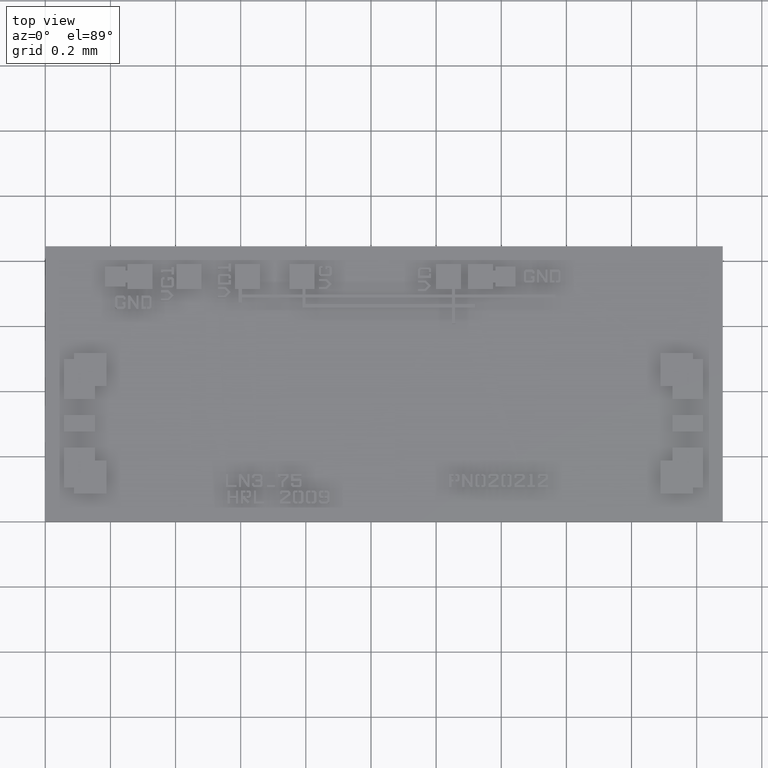
[diagram: clean part render]
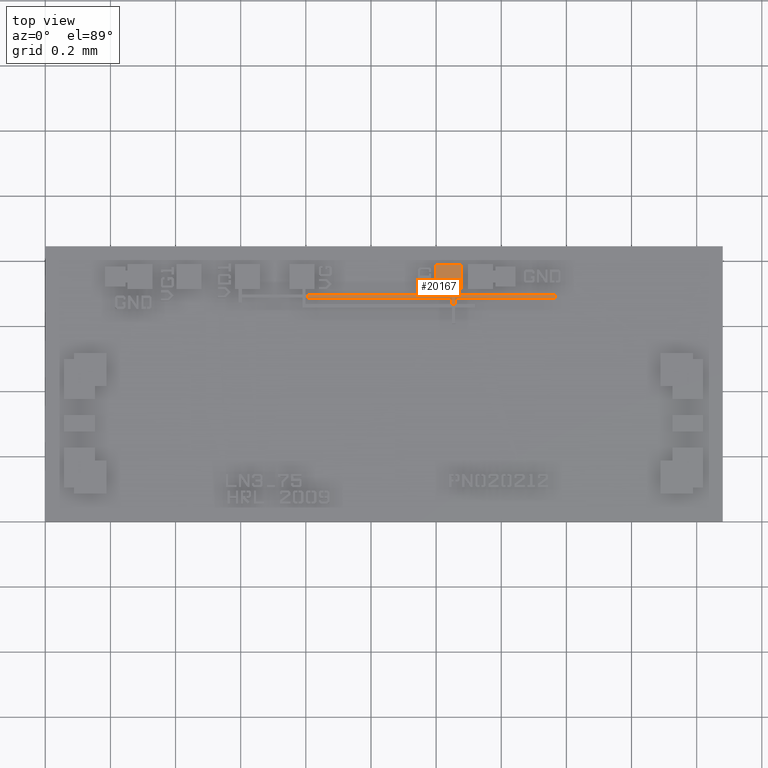
[diagram: same view with one face highlighted and labeled with its STEP entity id]
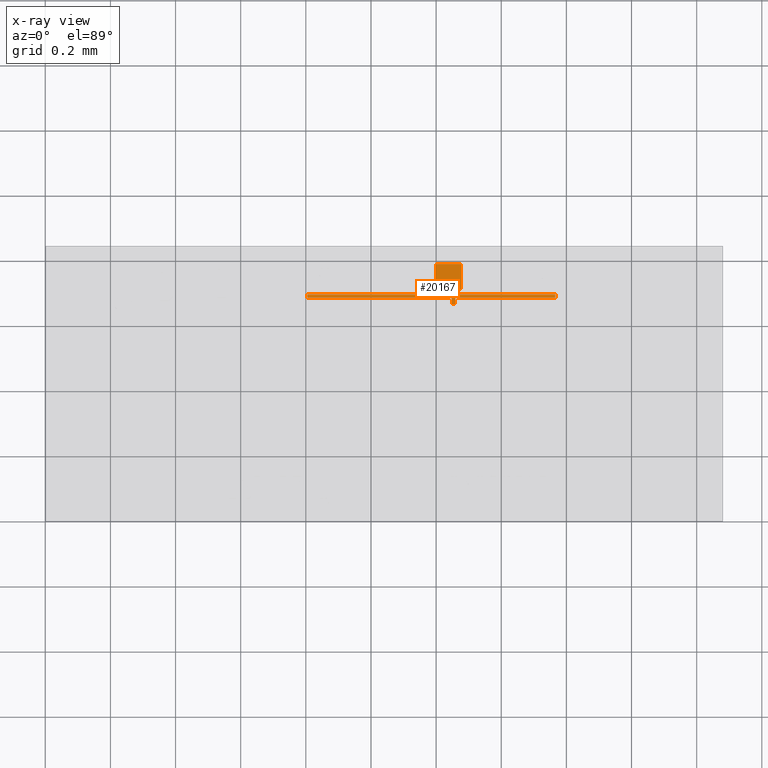
[diagram: x-ray of the same camera — body ghosted, the highlighted face saturated]
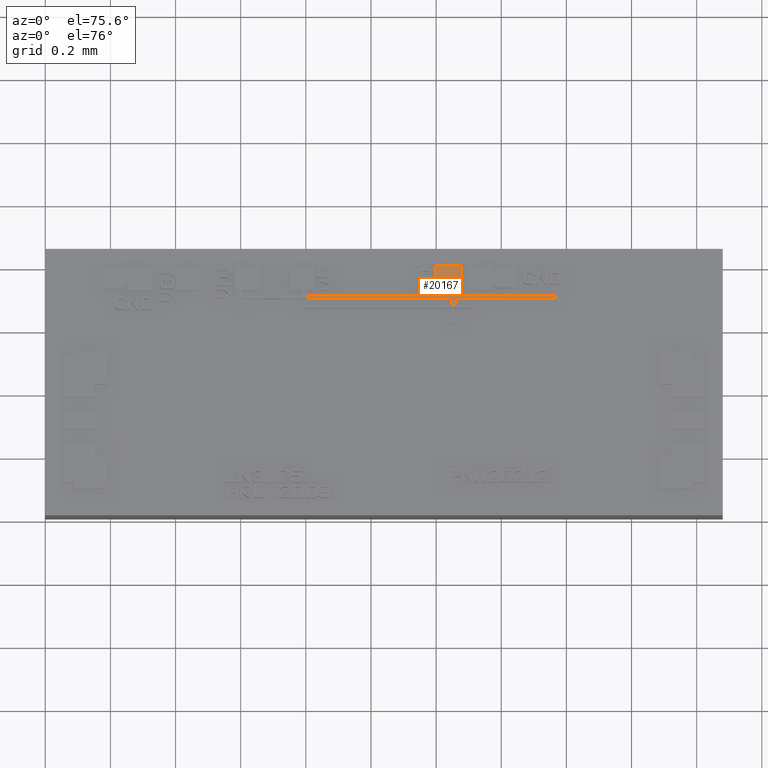
[diagram: same view with one face highlighted and labeled with its STEP entity id]
A machine part, top view. The second image highlights one B-rep face of the part: STEP entity #20167.
The next image is the same camera in x-ray: the body ghosted, the highlighted face saturated — about 0% of this face is hidden behind the body in this view.
A second angle (auxiliary view) of the same face is appended — the face is thin or edge-on in the first view.
In plain terms, the highlighted planar face has unit normal (0, 0, 1).
Its self-contained STEP definition (entity closure, byte-faithful):
#19637=CARTESIAN_POINT('',(0.031673228346457,0.027027559055118,0.002047244094488));
#19638=VERTEX_POINT('',#19637);
#19639=CARTESIAN_POINT('',(0.031673228346457,0.027421259842520,0.002047244094488));
#19640=VERTEX_POINT('',#19639);
#19641=CARTESIAN_POINT('',(0.031673228346457,0.027027559055118,0.002047244094488));
#19642=DIRECTION('',(0.0,1.0,0.0));
#19643=VECTOR('',#19642,0.000393700787402);
#19644=LINE('',#19641,#19643);
#19645=EDGE_CURVE('',#19638,#19640,#19644,.T.);
#20017=CARTESIAN_POINT('',(0.049153543307087,0.026240157480315,0.002047244094488));
#20018=VERTEX_POINT('',#20017);
#20025=CARTESIAN_POINT('',(0.049153543307087,0.027027559055118,0.002047244094488));
#20026=VERTEX_POINT('',#20025);
#20027=CARTESIAN_POINT('',(0.049153543307087,0.026240157480315,0.002047244094488));
#20028=DIRECTION('',(0.0,1.0,0.0));
#20029=VECTOR('',#20028,0.000787401574803);
#20030=LINE('',#20027,#20029);
#20031=EDGE_CURVE('',#20018,#20026,#20030,.T.);
#20050=CARTESIAN_POINT('',(0.047203048581485,0.027434630052117,0.002047244094488));
#20051=DIRECTION('',(0.0,0.0,1.0));
#20052=DIRECTION('',(1.0,0.0,0.0));
#20053=AXIS2_PLACEMENT_3D('',#20050,#20051,#20052);
#20054=PLANE('',#20053);
#20055=CARTESIAN_POINT('',(0.049547244094488,0.026240157480315,0.002047244094488));
#20056=VERTEX_POINT('',#20055);
#20057=CARTESIAN_POINT('',(0.049153543307087,0.026240157480315,0.002047244094488));
#20058=DIRECTION('',(1.0,0.0,0.0));
#20059=VECTOR('',#20058,0.000393700787402);
#20060=LINE('',#20057,#20059);
#20061=EDGE_CURVE('',#20018,#20056,#20060,.T.);
#20062=ORIENTED_EDGE('',*,*,#20061,.T.);
#20063=CARTESIAN_POINT('',(0.049547244094488,0.027027559055118,0.002047244094488));
#20064=VERTEX_POINT('',#20063);
#20065=CARTESIAN_POINT('',(0.049547244094488,0.027027559055118,0.002047244094488));
#20066=DIRECTION('',(0.0,-1.0,0.0));
#20067=VECTOR('',#20066,0.000787401574803);
#20068=LINE('',#20065,#20067);
#20069=EDGE_CURVE('',#20064,#20056,#20068,.T.);
#20070=ORIENTED_EDGE('',*,*,#20069,.F.);
#20071=CARTESIAN_POINT('',(0.061641732283465,0.027027559055118,0.002047244094488));
#20072=VERTEX_POINT('',#20071);
#20073=CARTESIAN_POINT('',(0.061641732283465,0.027027559055118,0.002047244094488));
#20074=DIRECTION('',(-1.0,0.0,0.0));
#20075=VECTOR('',#20074,0.012094488188976);
#20076=LINE('',#20073,#20075);
#20077=EDGE_CURVE('',#20072,#20064,#20076,.T.);
#20078=ORIENTED_EDGE('',*,*,#20077,.F.);
#20079=CARTESIAN_POINT('',(0.061641732283465,0.027421259842520,0.002047244094488));
#20080=VERTEX_POINT('',#20079);
#20081=CARTESIAN_POINT('',(0.061641732283465,0.027421259842520,0.002047244094488));
#20082=DIRECTION('',(0.0,-1.0,0.0));
#20083=VECTOR('',#20082,0.000393700787402);
#20084=LINE('',#20081,#20083);
#20085=EDGE_CURVE('',#20080,#20072,#20084,.T.);
#20086=ORIENTED_EDGE('',*,*,#20085,.F.);
#20087=CARTESIAN_POINT('',(0.049547244094488,0.027421259842520,0.002047244094488));
#20088=VERTEX_POINT('',#20087);
#20089=CARTESIAN_POINT('',(0.049547244094488,0.027421259842520,0.002047244094488));
#20090=DIRECTION('',(1.0,0.0,0.0));
#20091=VECTOR('',#20090,0.012094488188976);
#20092=LINE('',#20089,#20091);
#20093=EDGE_CURVE('',#20088,#20080,#20092,.T.);
#20094=ORIENTED_EDGE('',*,*,#20093,.F.);
#20095=CARTESIAN_POINT('',(0.049547244094488,0.028070866141732,0.002047244094488));
#20096=VERTEX_POINT('',#20095);
#20097=CARTESIAN_POINT('',(0.049547244094488,0.028070866141732,0.002047244094488));
#20098=DIRECTION('',(0.0,-1.0,0.0));
#20099=VECTOR('',#20098,0.000649606299213);
#20100=LINE('',#20097,#20099);
#20101=EDGE_CURVE('',#20096,#20088,#20100,.T.);
#20102=ORIENTED_EDGE('',*,*,#20101,.F.);
#20103=CARTESIAN_POINT('',(0.050255905511811,0.028070866141732,0.002047244094488));
#20104=VERTEX_POINT('',#20103);
#20105=CARTESIAN_POINT('',(0.050255905511811,0.028070866141732,0.002047244094488));
#20106=DIRECTION('',(-1.0,0.0,0.0));
#20107=VECTOR('',#20106,0.000708661417323);
#20108=LINE('',#20105,#20107);
#20109=EDGE_CURVE('',#20104,#20096,#20108,.T.);
#20110=ORIENTED_EDGE('',*,*,#20109,.F.);
#20111=CARTESIAN_POINT('',(0.050255905511811,0.031102362204724,0.002047244094488));
#20112=VERTEX_POINT('',#20111);
#20113=CARTESIAN_POINT('',(0.050255905511811,0.031102362204724,0.002047244094488));
#20114=DIRECTION('',(0.0,-1.0,0.0));
#20115=VECTOR('',#20114,0.003031496062992);
#20116=LINE('',#20113,#20115);
#20117=EDGE_CURVE('',#20112,#20104,#20116,.T.);
#20118=ORIENTED_EDGE('',*,*,#20117,.F.);
#20119=CARTESIAN_POINT('',(0.047224409448819,0.031102362204724,0.002047244094488));
#20120=VERTEX_POINT('',#20119);
#20121=CARTESIAN_POINT('',(0.047224409448819,0.031102362204724,0.002047244094488));
#20122=DIRECTION('',(1.0,0.0,0.0));
#20123=VECTOR('',#20122,0.003031496062992);
#20124=LINE('',#20121,#20123);
#20125=EDGE_CURVE('',#20120,#20112,#20124,.T.);
#20126=ORIENTED_EDGE('',*,*,#20125,.F.);
#20127=CARTESIAN_POINT('',(0.047224409448819,0.028070866141732,0.002047244094488));
#20128=VERTEX_POINT('',#20127);
#20129=CARTESIAN_POINT('',(0.047224409448819,0.028070866141732,0.002047244094488));
#20130=DIRECTION('',(0.0,1.0,0.0));
#20131=VECTOR('',#20130,0.003031496062992);
#20132=LINE('',#20129,#20131);
#20133=EDGE_CURVE('',#20128,#20120,#20132,.T.);
#20134=ORIENTED_EDGE('',*,*,#20133,.F.);
#20135=CARTESIAN_POINT('',(0.049153543307087,0.028070866141732,0.002047244094488));
#20136=VERTEX_POINT('',#20135);
#20137=CARTESIAN_POINT('',(0.049153543307087,0.028070866141732,0.002047244094488));
#20138=DIRECTION('',(-1.0,0.0,0.0));
#20139=VECTOR('',#20138,0.001929133858268);
#20140=LINE('',#20137,#20139);
#20141=EDGE_CURVE('',#20136,#20128,#20140,.T.);
#20142=ORIENTED_EDGE('',*,*,#20141,.F.);
#20143=CARTESIAN_POINT('',(0.049153543307087,0.027421259842520,0.002047244094488));
#20144=VERTEX_POINT('',#20143);
#20145=CARTESIAN_POINT('',(0.049153543307087,0.027421259842520,0.002047244094488));
#20146=DIRECTION('',(0.0,1.0,0.0));
#20147=VECTOR('',#20146,0.000649606299213);
#20148=LINE('',#20145,#20147);
#20149=EDGE_CURVE('',#20144,#20136,#20148,.T.);
#20150=ORIENTED_EDGE('',*,*,#20149,.F.);
#20151=CARTESIAN_POINT('',(0.031673228346457,0.027421259842520,0.002047244094488));
#20152=DIRECTION('',(1.0,0.0,0.0));
#20153=VECTOR('',#20152,0.017480314960630);
#20154=LINE('',#20151,#20153);
#20155=EDGE_CURVE('',#19640,#20144,#20154,.T.);
#20156=ORIENTED_EDGE('',*,*,#20155,.F.);
#20157=ORIENTED_EDGE('',*,*,#19645,.F.);
#20158=CARTESIAN_POINT('',(0.049153543307087,0.027027559055118,0.002047244094488));
#20159=DIRECTION('',(-1.0,0.0,0.0));
#20160=VECTOR('',#20159,0.017480314960630);
#20161=LINE('',#20158,#20160);
#20162=EDGE_CURVE('',#20026,#19638,#20161,.T.);
#20163=ORIENTED_EDGE('',*,*,#20162,.F.);
#20164=ORIENTED_EDGE('',*,*,#20031,.F.);
#20165=EDGE_LOOP('',(#20062,#20070,#20078,#20086,#20094,#20102,#20110,#20118,#20126,#20134,#20142,#20150,#20156,#20157,#20163,#20164));
#20166=FACE_OUTER_BOUND('',#20165,.T.);
#20167=ADVANCED_FACE('',(#20166),#20054,.T.);